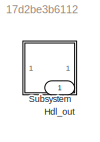
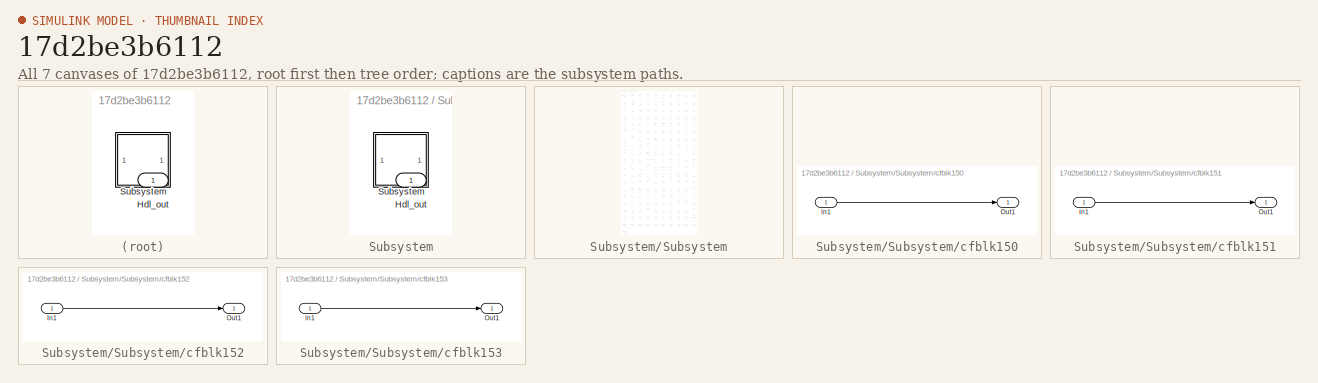
[diagram: thumbnail index - all 7 canvases of the model, root first then tree order]
MODEL slx_17d2be3b6112
KIND model
CONFIG AbsTol = auto
CONFIG EnableMultiTasking = off
CONFIG FixedStep = auto
CONFIG MaxStep = auto
CONFIG MinStep = auto
CONFIG RelTol = 1e-3
CONFIG SampleTimeConstraint = Unconstrained
CONFIG SolverName = VariableStepAuto
CONFIG StartTime = 0.0
CONFIG StopTime = 10.0
BLOCK [Outport] Hdl_out
  OutDataTypeStr = uint8
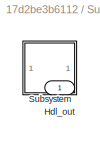
BLOCK [SubSystem] Subsystem
BLOCK [Outport] Subsystem/Hdl_out
  OutDataTypeStr = uint8
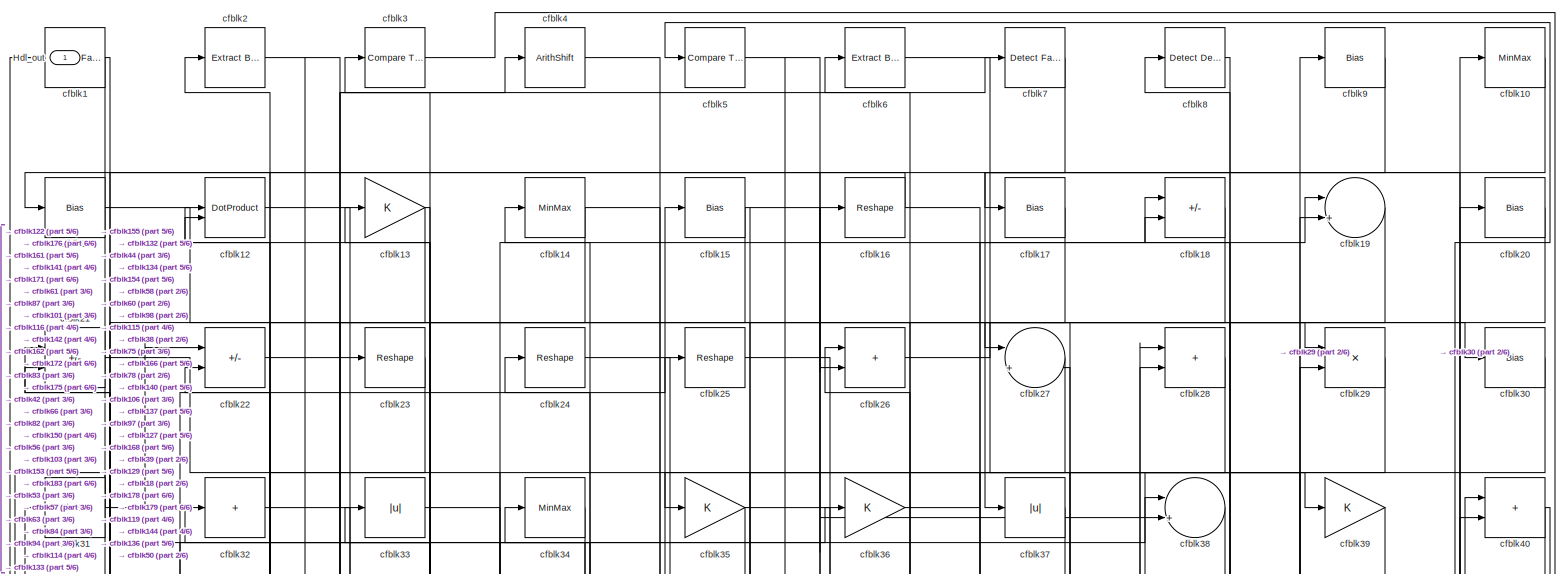
[diagram: Subsystem/Subsystem - part 1/6, full width, top band]
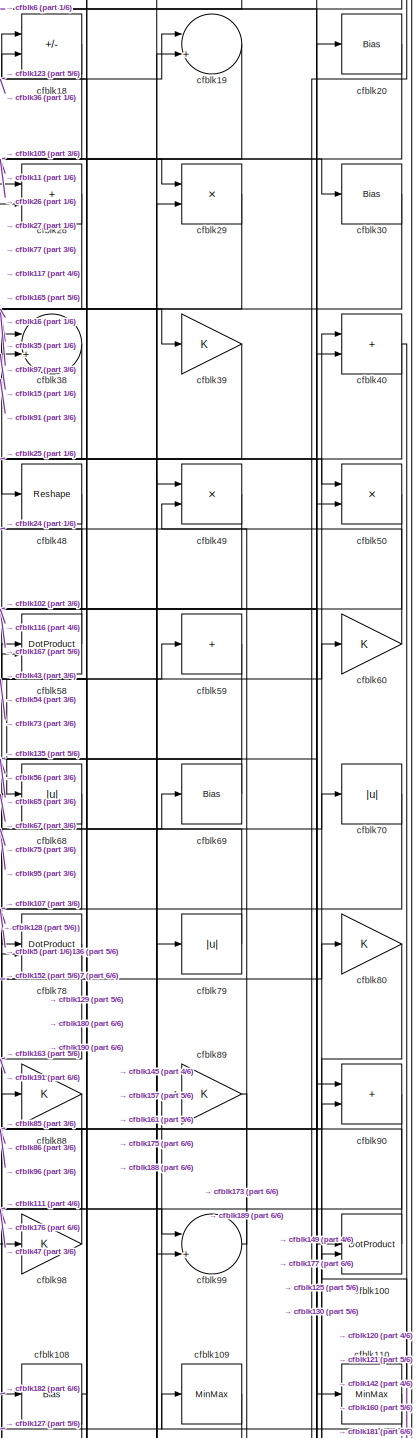
[diagram: Subsystem/Subsystem - part 2/6, top right region]
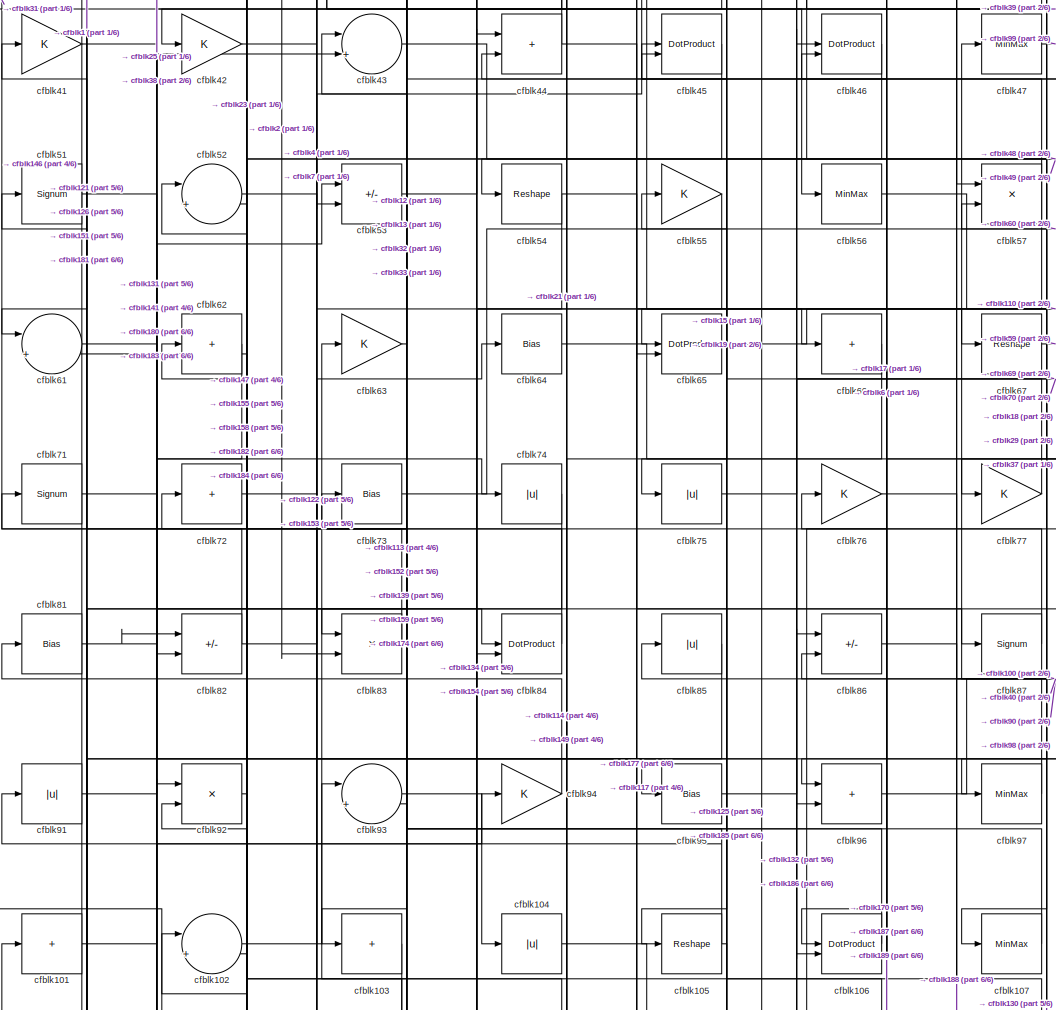
[diagram: Subsystem/Subsystem - part 3/6, central region]
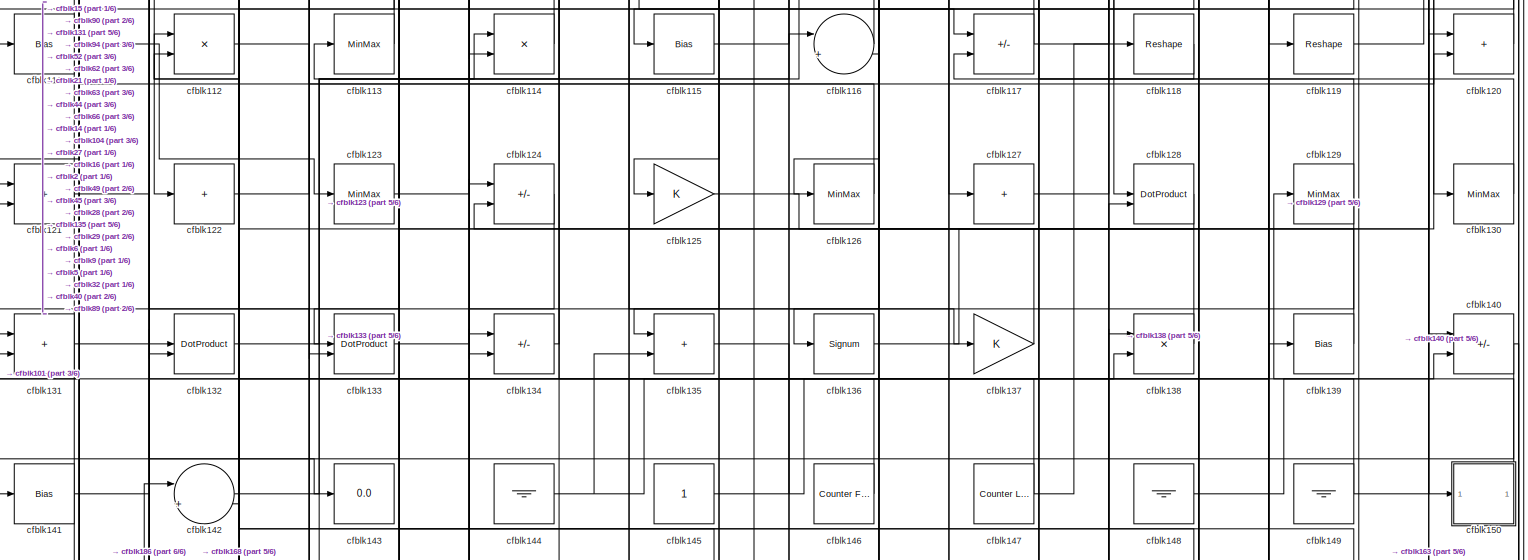
[diagram: Subsystem/Subsystem - part 4/6, full width, middle band]
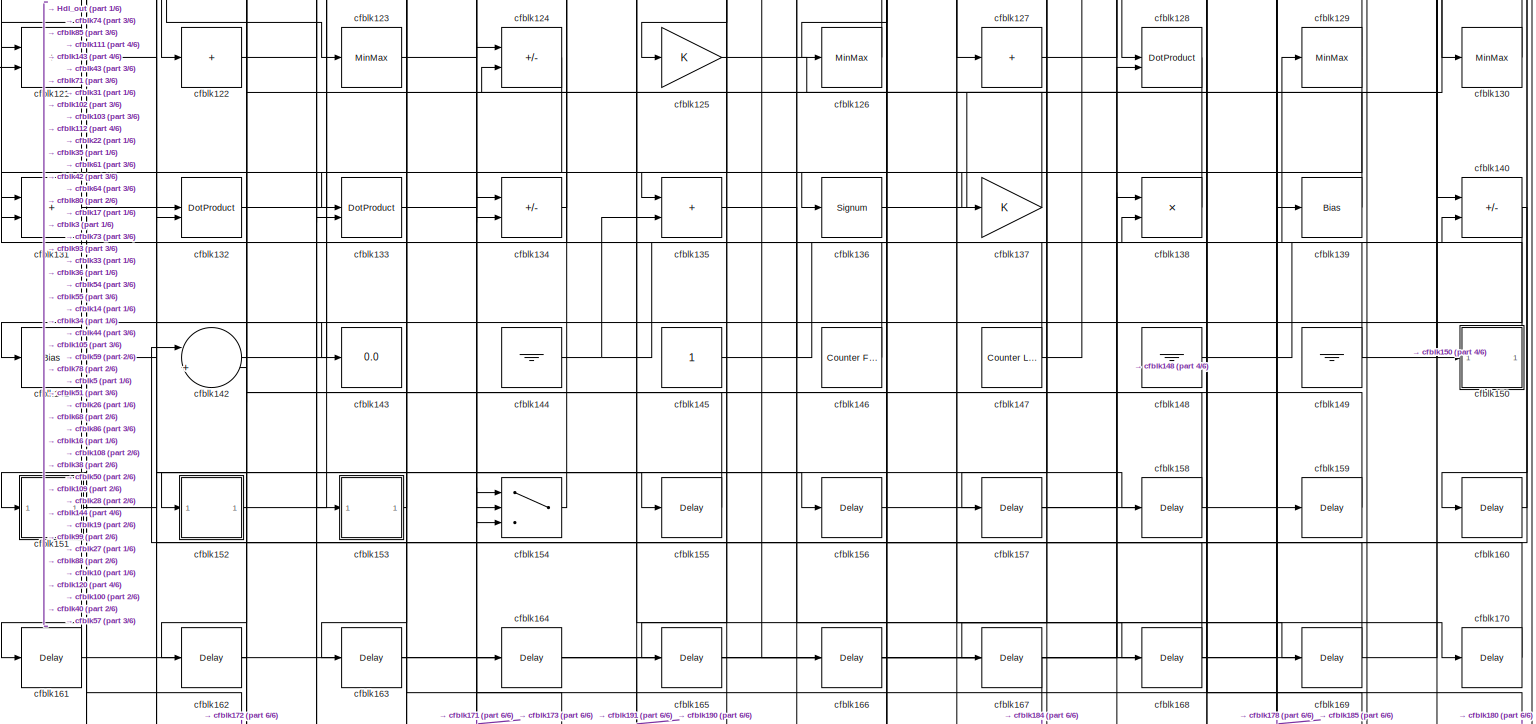
[diagram: Subsystem/Subsystem - part 5/6, full width, bottom band]
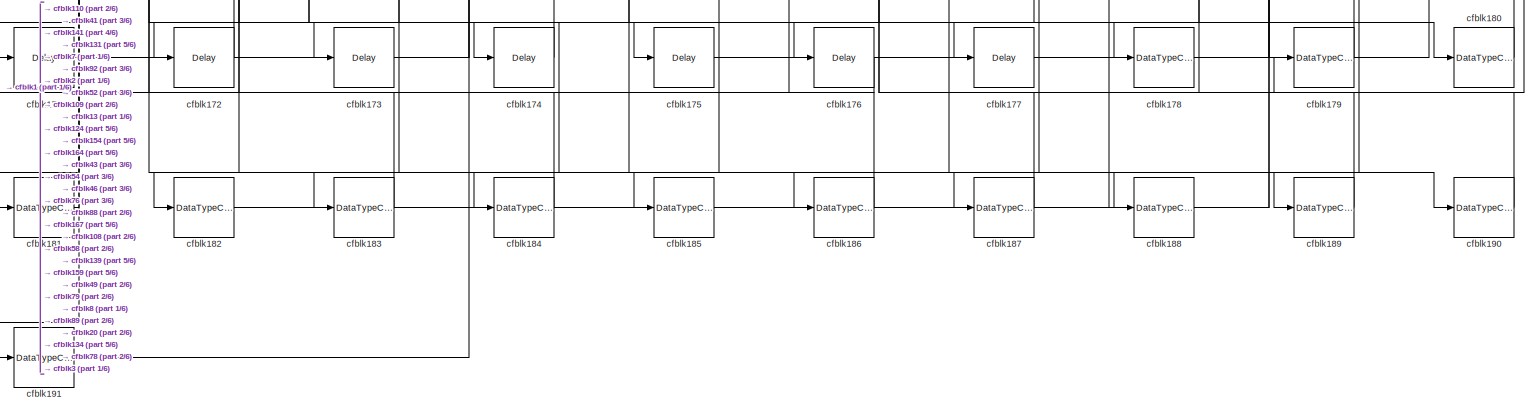
[diagram: Subsystem/Subsystem - part 6/6, full width, bottom band]
BLOCK [SubSystem] Subsystem/Subsystem
BLOCK [Outport] Subsystem/Subsystem/Hdl_out
  OutDataTypeStr = uint8
BLOCK [Reference] Subsystem/Subsystem/cfblk1  REF=hdlsllib/Logic and Bit
Operations/Detect Fall
Nonpositive
  SourceBlock = hdlsllib/Logic and Bit\nOperations/Detect Fall\nNonpositive
  SourceType = Detect Fall Nonpositive
BLOCK [MinMax] Subsystem/Subsystem/cfblk10
  OutDataTypeStr = uint8
BLOCK [DotProduct] Subsystem/Subsystem/cfblk100
  OutDataTypeStr = uint8
BLOCK [Sum] Subsystem/Subsystem/cfblk101
  IconShape = rectangular
  Inputs = +
  OutDataTypeStr = uint8
BLOCK [Sum] Subsystem/Subsystem/cfblk102
  Inputs = |++
  OutDataTypeStr = uint8
BLOCK [Sum] Subsystem/Subsystem/cfblk103
  IconShape = rectangular
  Inputs = +
  OutDataTypeStr = uint8
BLOCK [Abs] Subsystem/Subsystem/cfblk104
  OutDataTypeStr = uint8
  SaturateOnIntegerOverflow = off
BLOCK [Reshape] Subsystem/Subsystem/cfblk105
BLOCK [DotProduct] Subsystem/Subsystem/cfblk106
  OutDataTypeStr = uint8
BLOCK [MinMax] Subsystem/Subsystem/cfblk107
  OutDataTypeStr = uint8
BLOCK [Bias] Subsystem/Subsystem/cfblk108
  Bias = 0.0
  SaturateOnIntegerOverflow = off
BLOCK [MinMax] Subsystem/Subsystem/cfblk109
  OutDataTypeStr = uint8
BLOCK [Bias] Subsystem/Subsystem/cfblk11
  Bias = 0.0
  SaturateOnIntegerOverflow = off
BLOCK [MinMax] Subsystem/Subsystem/cfblk110
  OutDataTypeStr = uint8
BLOCK [Bias] Subsystem/Subsystem/cfblk111
  Bias = 0.0
  SaturateOnIntegerOverflow = off
BLOCK [Product] Subsystem/Subsystem/cfblk112
  Inputs = */
  OutDataTypeStr = uint8
  RndMeth = Zero
  SaturateOnIntegerOverflow = on
BLOCK [MinMax] Subsystem/Subsystem/cfblk113
  OutDataTypeStr = uint8
BLOCK [Product] Subsystem/Subsystem/cfblk114
  Inputs = */
  OutDataTypeStr = uint8
  RndMeth = Zero
  SaturateOnIntegerOverflow = on
BLOCK [Bias] Subsystem/Subsystem/cfblk115
  Bias = 0.0
  SaturateOnIntegerOverflow = off
BLOCK [Sum] Subsystem/Subsystem/cfblk116
  Inputs = |++
  OutDataTypeStr = uint8
BLOCK [Sum] Subsystem/Subsystem/cfblk117
  IconShape = rectangular
  Inputs = +-
  OutDataTypeStr = uint8
BLOCK [Reshape] Subsystem/Subsystem/cfblk118
BLOCK [Reshape] Subsystem/Subsystem/cfblk119
BLOCK [DotProduct] Subsystem/Subsystem/cfblk12
  OutDataTypeStr = uint8
BLOCK [Sum] Subsystem/Subsystem/cfblk120
  IconShape = rectangular
  OutDataTypeStr = uint8
BLOCK [Sum] Subsystem/Subsystem/cfblk121
  IconShape = rectangular
  OutDataTypeStr = uint8
BLOCK [Sum] Subsystem/Subsystem/cfblk122
  IconShape = rectangular
  Inputs = +
  OutDataTypeStr = uint8
BLOCK [MinMax] Subsystem/Subsystem/cfblk123
  OutDataTypeStr = uint8
BLOCK [Sum] Subsystem/Subsystem/cfblk124
  IconShape = rectangular
  Inputs = +-
  OutDataTypeStr = uint8
BLOCK [Gain] Subsystem/Subsystem/cfblk125
  OutDataTypeStr = uint8
BLOCK [MinMax] Subsystem/Subsystem/cfblk126
  OutDataTypeStr = uint8
BLOCK [Sum] Subsystem/Subsystem/cfblk127
  IconShape = rectangular
  Inputs = +
  OutDataTypeStr = uint8
BLOCK [DotProduct] Subsystem/Subsystem/cfblk128
  OutDataTypeStr = uint8
BLOCK [MinMax] Subsystem/Subsystem/cfblk129
  OutDataTypeStr = uint8
BLOCK [Gain] Subsystem/Subsystem/cfblk13
  OutDataTypeStr = uint8
BLOCK [MinMax] Subsystem/Subsystem/cfblk130
  OutDataTypeStr = uint8
BLOCK [Sum] Subsystem/Subsystem/cfblk131
  IconShape = rectangular
  OutDataTypeStr = uint8
BLOCK [DotProduct] Subsystem/Subsystem/cfblk132
  OutDataTypeStr = uint8
BLOCK [DotProduct] Subsystem/Subsystem/cfblk133
  OutDataTypeStr = uint8
BLOCK [Sum] Subsystem/Subsystem/cfblk134
  IconShape = rectangular
  Inputs = +-
  OutDataTypeStr = uint8
BLOCK [Sum] Subsystem/Subsystem/cfblk135
  IconShape = rectangular
  OutDataTypeStr = uint8
BLOCK [Signum] Subsystem/Subsystem/cfblk136
BLOCK [Gain] Subsystem/Subsystem/cfblk137
  OutDataTypeStr = uint8
BLOCK [Product] Subsystem/Subsystem/cfblk138
  Inputs = */
  OutDataTypeStr = uint8
  RndMeth = Zero
  SaturateOnIntegerOverflow = on
BLOCK [Bias] Subsystem/Subsystem/cfblk139
  Bias = 0.0
  SaturateOnIntegerOverflow = off
BLOCK [MinMax] Subsystem/Subsystem/cfblk14
  OutDataTypeStr = uint8
BLOCK [Sum] Subsystem/Subsystem/cfblk140
  IconShape = rectangular
  Inputs = +-
  OutDataTypeStr = uint8
BLOCK [Bias] Subsystem/Subsystem/cfblk141
  Bias = 0.0
  SaturateOnIntegerOverflow = off
BLOCK [Sum] Subsystem/Subsystem/cfblk142
  Inputs = |++
  OutDataTypeStr = uint8
BLOCK [Display] Subsystem/Subsystem/cfblk143
  Decimation = 1
BLOCK [Ground] Subsystem/Subsystem/cfblk144
BLOCK [Constant] Subsystem/Subsystem/cfblk145
  OutDataTypeStr = uint8
  SampleTime = -1
BLOCK [Reference] Subsystem/Subsystem/cfblk146  REF=hdlsllib/Sources/Counter
Free-Running
  SourceBlock = hdlsllib/Sources/Counter\nFree-Running
  SourceType = Counter Free-Running
BLOCK [Reference] Subsystem/Subsystem/cfblk147  REF=hdlsllib/Sources/Counter
Limited
  SourceBlock = hdlsllib/Sources/Counter\nLimited
  SourceType = Counter Limited
BLOCK [Ground] Subsystem/Subsystem/cfblk148
BLOCK [Ground] Subsystem/Subsystem/cfblk149
BLOCK [Bias] Subsystem/Subsystem/cfblk15
  Bias = 0.0
  SaturateOnIntegerOverflow = off
BLOCK [SubSystem] Subsystem/Subsystem/cfblk150
  LibrarySourceBlock = hdlsllib/Ports &\nSubsystems/Subsystem
BLOCK [Inport] Subsystem/Subsystem/cfblk150/In1
BLOCK [Outport] Subsystem/Subsystem/cfblk150/Out1
BLOCK [SubSystem] Subsystem/Subsystem/cfblk151
  LibrarySourceBlock = hdlsllib/Ports &\nSubsystems/Subsystem
BLOCK [Inport] Subsystem/Subsystem/cfblk151/In1
BLOCK [Outport] Subsystem/Subsystem/cfblk151/Out1
BLOCK [SubSystem] Subsystem/Subsystem/cfblk152
  LibrarySourceBlock = hdlsllib/Ports &\nSubsystems/Subsystem
BLOCK [Inport] Subsystem/Subsystem/cfblk152/In1
BLOCK [Outport] Subsystem/Subsystem/cfblk152/Out1
BLOCK [SubSystem] Subsystem/Subsystem/cfblk153
  LibrarySourceBlock = hdlsllib/Ports &\nSubsystems/Subsystem
BLOCK [Inport] Subsystem/Subsystem/cfblk153/In1
BLOCK [Outport] Subsystem/Subsystem/cfblk153/Out1
BLOCK [Switch] Subsystem/Subsystem/cfblk154
  InputSameDT = off
  OutDataTypeStr = uint8
  SaturateOnIntegerOverflow = off
BLOCK [Delay] Subsystem/Subsystem/cfblk155
  InputPortMap = u0
  SampleTime = 1
BLOCK [Delay] Subsystem/Subsystem/cfblk156
  InputPortMap = u0
  SampleTime = 1
BLOCK [Delay] Subsystem/Subsystem/cfblk157
  InputPortMap = u0
  SampleTime = 1
BLOCK [Delay] Subsystem/Subsystem/cfblk158
  InputPortMap = u0
  SampleTime = 1
BLOCK [Delay] Subsystem/Subsystem/cfblk159
  InputPortMap = u0
  SampleTime = 1
BLOCK [Reshape] Subsystem/Subsystem/cfblk16
BLOCK [Delay] Subsystem/Subsystem/cfblk160
  InputPortMap = u0
  SampleTime = 1
BLOCK [Delay] Subsystem/Subsystem/cfblk161
  InputPortMap = u0
  SampleTime = 1
BLOCK [Delay] Subsystem/Subsystem/cfblk162
  InputPortMap = u0
  SampleTime = 1
BLOCK [Delay] Subsystem/Subsystem/cfblk163
  InputPortMap = u0
  SampleTime = 1
BLOCK [Delay] Subsystem/Subsystem/cfblk164
  InputPortMap = u0
  SampleTime = 1
BLOCK [Delay] Subsystem/Subsystem/cfblk165
  InputPortMap = u0
  SampleTime = 1
BLOCK [Delay] Subsystem/Subsystem/cfblk166
  InputPortMap = u0
  SampleTime = 1
BLOCK [Delay] Subsystem/Subsystem/cfblk167
  InputPortMap = u0
  SampleTime = 1
BLOCK [Delay] Subsystem/Subsystem/cfblk168
  InputPortMap = u0
  SampleTime = 1
BLOCK [Delay] Subsystem/Subsystem/cfblk169
  InputPortMap = u0
  SampleTime = 1
BLOCK [Bias] Subsystem/Subsystem/cfblk17
  Bias = 0.0
  SaturateOnIntegerOverflow = off
BLOCK [Delay] Subsystem/Subsystem/cfblk170
  InputPortMap = u0
  SampleTime = 1
BLOCK [Delay] Subsystem/Subsystem/cfblk171
  InputPortMap = u0
  SampleTime = 1
BLOCK [Delay] Subsystem/Subsystem/cfblk172
  InputPortMap = u0
  SampleTime = 1
BLOCK [Delay] Subsystem/Subsystem/cfblk173
  InputPortMap = u0
  SampleTime = 1
BLOCK [Delay] Subsystem/Subsystem/cfblk174
  InputPortMap = u0
  SampleTime = 1
BLOCK [Delay] Subsystem/Subsystem/cfblk175
  InputPortMap = u0
  SampleTime = 1
BLOCK [Delay] Subsystem/Subsystem/cfblk176
  InputPortMap = u0
  SampleTime = 1
BLOCK [Delay] Subsystem/Subsystem/cfblk177
  InputPortMap = u0
  SampleTime = 1
BLOCK [DataTypeConversion] Subsystem/Subsystem/cfblk178
  OutDataTypeStr = uint8
  RndMeth = Floor
  SaturateOnIntegerOverflow = off
BLOCK [DataTypeConversion] Subsystem/Subsystem/cfblk179
  OutDataTypeStr = uint8
  RndMeth = Floor
  SaturateOnIntegerOverflow = off
BLOCK [Sum] Subsystem/Subsystem/cfblk18
  IconShape = rectangular
  Inputs = +-
  OutDataTypeStr = uint8
BLOCK [DataTypeConversion] Subsystem/Subsystem/cfblk180
  OutDataTypeStr = uint8
  RndMeth = Floor
  SaturateOnIntegerOverflow = off
BLOCK [DataTypeConversion] Subsystem/Subsystem/cfblk181
  OutDataTypeStr = uint8
  RndMeth = Floor
  SaturateOnIntegerOverflow = off
BLOCK [DataTypeConversion] Subsystem/Subsystem/cfblk182
  OutDataTypeStr = uint8
  RndMeth = Floor
  SaturateOnIntegerOverflow = off
BLOCK [DataTypeConversion] Subsystem/Subsystem/cfblk183
  OutDataTypeStr = uint8
  RndMeth = Floor
  SaturateOnIntegerOverflow = off
BLOCK [DataTypeConversion] Subsystem/Subsystem/cfblk184
  OutDataTypeStr = uint8
  RndMeth = Floor
  SaturateOnIntegerOverflow = off
BLOCK [DataTypeConversion] Subsystem/Subsystem/cfblk185
  OutDataTypeStr = uint8
  RndMeth = Floor
  SaturateOnIntegerOverflow = off
BLOCK [DataTypeConversion] Subsystem/Subsystem/cfblk186
  OutDataTypeStr = uint8
  RndMeth = Floor
  SaturateOnIntegerOverflow = off
BLOCK [DataTypeConversion] Subsystem/Subsystem/cfblk187
  OutDataTypeStr = uint8
  RndMeth = Floor
  SaturateOnIntegerOverflow = off
BLOCK [DataTypeConversion] Subsystem/Subsystem/cfblk188
  OutDataTypeStr = uint8
  RndMeth = Floor
  SaturateOnIntegerOverflow = off
BLOCK [DataTypeConversion] Subsystem/Subsystem/cfblk189
  OutDataTypeStr = uint8
  RndMeth = Floor
  SaturateOnIntegerOverflow = off
BLOCK [Sum] Subsystem/Subsystem/cfblk19
  Inputs = |++
  OutDataTypeStr = uint8
BLOCK [DataTypeConversion] Subsystem/Subsystem/cfblk190
  OutDataTypeStr = uint8
  RndMeth = Floor
  SaturateOnIntegerOverflow = off
BLOCK [DataTypeConversion] Subsystem/Subsystem/cfblk191
  OutDataTypeStr = uint8
  RndMeth = Floor
  SaturateOnIntegerOverflow = off
BLOCK [Reference] Subsystem/Subsystem/cfblk2  REF=simulink/Logic and Bit
Operations/Extract Bits
  LibrarySourceBlock = hdlsllib/Logic and Bit\nOperations/Extract Bits
  SourceBlock = simulink/Logic and Bit\nOperations/Extract Bits
  SourceType = Extract Bits
BLOCK [Bias] Subsystem/Subsystem/cfblk20
  Bias = 0.0
  SaturateOnIntegerOverflow = off
BLOCK [Sum] Subsystem/Subsystem/cfblk21
  IconShape = rectangular
  Inputs = +-
  OutDataTypeStr = uint8
BLOCK [Sum] Subsystem/Subsystem/cfblk22
  IconShape = rectangular
  Inputs = +-
  OutDataTypeStr = uint8
BLOCK [Reshape] Subsystem/Subsystem/cfblk23
BLOCK [Reshape] Subsystem/Subsystem/cfblk24
BLOCK [Reshape] Subsystem/Subsystem/cfblk25
BLOCK [Sum] Subsystem/Subsystem/cfblk26
  IconShape = rectangular
  OutDataTypeStr = uint8
BLOCK [Sum] Subsystem/Subsystem/cfblk27
  Inputs = |++
  OutDataTypeStr = uint8
BLOCK [Sum] Subsystem/Subsystem/cfblk28
  IconShape = rectangular
  OutDataTypeStr = uint8
BLOCK [Product] Subsystem/Subsystem/cfblk29
  Inputs = */
  OutDataTypeStr = uint8
  RndMeth = Zero
  SaturateOnIntegerOverflow = on
BLOCK [Reference] Subsystem/Subsystem/cfblk3  REF=hdlsllib/Logic and Bit
Operations/Compare
To Zero
  SourceBlock = hdlsllib/Logic and Bit\nOperations/Compare\nTo Zero
  SourceType = Compare To Zero
BLOCK [Bias] Subsystem/Subsystem/cfblk30
  Bias = 0.0
  SaturateOnIntegerOverflow = off
BLOCK [MinMax] Subsystem/Subsystem/cfblk31
  OutDataTypeStr = uint8
BLOCK [Sum] Subsystem/Subsystem/cfblk32
  IconShape = rectangular
  Inputs = +
  OutDataTypeStr = uint8
BLOCK [Abs] Subsystem/Subsystem/cfblk33
  OutDataTypeStr = uint8
  SaturateOnIntegerOverflow = off
BLOCK [MinMax] Subsystem/Subsystem/cfblk34
  OutDataTypeStr = uint8
BLOCK [Gain] Subsystem/Subsystem/cfblk35
  OutDataTypeStr = uint8
BLOCK [Gain] Subsystem/Subsystem/cfblk36
  OutDataTypeStr = uint8
BLOCK [Abs] Subsystem/Subsystem/cfblk37
  OutDataTypeStr = uint8
  SaturateOnIntegerOverflow = off
BLOCK [Sum] Subsystem/Subsystem/cfblk38
  Inputs = |++
  OutDataTypeStr = uint8
BLOCK [Gain] Subsystem/Subsystem/cfblk39
  OutDataTypeStr = uint8
BLOCK [ArithShift] Subsystem/Subsystem/cfblk4
  BitShiftNumber = 8
  InputPortMap = u0
BLOCK [Sum] Subsystem/Subsystem/cfblk40
  IconShape = rectangular
  OutDataTypeStr = uint8
BLOCK [Gain] Subsystem/Subsystem/cfblk41
  OutDataTypeStr = uint8
BLOCK [Gain] Subsystem/Subsystem/cfblk42
  OutDataTypeStr = uint8
BLOCK [Sum] Subsystem/Subsystem/cfblk43
  Inputs = |++
  OutDataTypeStr = uint8
BLOCK [Sum] Subsystem/Subsystem/cfblk44
  IconShape = rectangular
  OutDataTypeStr = uint8
BLOCK [DotProduct] Subsystem/Subsystem/cfblk45
  OutDataTypeStr = uint8
BLOCK [DotProduct] Subsystem/Subsystem/cfblk46
  OutDataTypeStr = uint8
BLOCK [MinMax] Subsystem/Subsystem/cfblk47
  OutDataTypeStr = uint8
BLOCK [Reshape] Subsystem/Subsystem/cfblk48
BLOCK [Product] Subsystem/Subsystem/cfblk49
  Inputs = */
  OutDataTypeStr = uint8
  RndMeth = Zero
  SaturateOnIntegerOverflow = on
BLOCK [Reference] Subsystem/Subsystem/cfblk5  REF=hdlsllib/Logic and Bit
Operations/Compare
To Zero
  SourceBlock = hdlsllib/Logic and Bit\nOperations/Compare\nTo Zero
  SourceType = Compare To Zero
BLOCK [Product] Subsystem/Subsystem/cfblk50
  Inputs = */
  OutDataTypeStr = uint8
  RndMeth = Zero
  SaturateOnIntegerOverflow = on
BLOCK [Signum] Subsystem/Subsystem/cfblk51
BLOCK [Sum] Subsystem/Subsystem/cfblk52
  Inputs = |++
  OutDataTypeStr = uint8
BLOCK [Sum] Subsystem/Subsystem/cfblk53
  IconShape = rectangular
  Inputs = +-
  OutDataTypeStr = uint8
BLOCK [Reshape] Subsystem/Subsystem/cfblk54
BLOCK [Gain] Subsystem/Subsystem/cfblk55
  OutDataTypeStr = uint8
BLOCK [MinMax] Subsystem/Subsystem/cfblk56
  OutDataTypeStr = uint8
BLOCK [Product] Subsystem/Subsystem/cfblk57
  Inputs = */
  OutDataTypeStr = uint8
  RndMeth = Zero
  SaturateOnIntegerOverflow = on
BLOCK [DotProduct] Subsystem/Subsystem/cfblk58
  OutDataTypeStr = uint8
BLOCK [Sum] Subsystem/Subsystem/cfblk59
  IconShape = rectangular
  Inputs = +
  OutDataTypeStr = uint8
BLOCK [Reference] Subsystem/Subsystem/cfblk6  REF=simulink/Logic and Bit
Operations/Extract Bits
  LibrarySourceBlock = hdlsllib/Logic and Bit\nOperations/Extract Bits
  SourceBlock = simulink/Logic and Bit\nOperations/Extract Bits
  SourceType = Extract Bits
BLOCK [Gain] Subsystem/Subsystem/cfblk60
  OutDataTypeStr = uint8
BLOCK [Sum] Subsystem/Subsystem/cfblk61
  Inputs = |++
  OutDataTypeStr = uint8
BLOCK [Sum] Subsystem/Subsystem/cfblk62
  IconShape = rectangular
  Inputs = +
  OutDataTypeStr = uint8
BLOCK [Gain] Subsystem/Subsystem/cfblk63
  OutDataTypeStr = uint8
BLOCK [Bias] Subsystem/Subsystem/cfblk64
  Bias = 0.0
  SaturateOnIntegerOverflow = off
BLOCK [DotProduct] Subsystem/Subsystem/cfblk65
  OutDataTypeStr = uint8
BLOCK [Sum] Subsystem/Subsystem/cfblk66
  IconShape = rectangular
  Inputs = +
  OutDataTypeStr = uint8
BLOCK [Reshape] Subsystem/Subsystem/cfblk67
BLOCK [Abs] Subsystem/Subsystem/cfblk68
  OutDataTypeStr = uint8
  SaturateOnIntegerOverflow = off
BLOCK [Bias] Subsystem/Subsystem/cfblk69
  Bias = 0.0
  SaturateOnIntegerOverflow = off
BLOCK [Reference] Subsystem/Subsystem/cfblk7  REF=hdlsllib/Logic and Bit
Operations/Detect Fall
Negative
  SourceBlock = hdlsllib/Logic and Bit\nOperations/Detect Fall\nNegative
  SourceType = Detect Fall Negative
BLOCK [Abs] Subsystem/Subsystem/cfblk70
  OutDataTypeStr = uint8
  SaturateOnIntegerOverflow = off
BLOCK [Signum] Subsystem/Subsystem/cfblk71
BLOCK [Sum] Subsystem/Subsystem/cfblk72
  IconShape = rectangular
  Inputs = +
  OutDataTypeStr = uint8
BLOCK [Bias] Subsystem/Subsystem/cfblk73
  Bias = 0.0
  SaturateOnIntegerOverflow = off
BLOCK [Abs] Subsystem/Subsystem/cfblk74
  OutDataTypeStr = uint8
  SaturateOnIntegerOverflow = off
BLOCK [Abs] Subsystem/Subsystem/cfblk75
  OutDataTypeStr = uint8
  SaturateOnIntegerOverflow = off
BLOCK [Gain] Subsystem/Subsystem/cfblk76
  OutDataTypeStr = uint8
BLOCK [Gain] Subsystem/Subsystem/cfblk77
  OutDataTypeStr = uint8
BLOCK [DotProduct] Subsystem/Subsystem/cfblk78
  OutDataTypeStr = uint8
BLOCK [Abs] Subsystem/Subsystem/cfblk79
  OutDataTypeStr = uint8
  SaturateOnIntegerOverflow = off
BLOCK [Reference] Subsystem/Subsystem/cfblk8  REF=simulink/Logic and Bit
Operations/Detect
Decrease
  LibrarySourceBlock = hdlsllib/Logic and Bit\nOperations/Detect\nDecrease
  SourceBlock = simulink/Logic and Bit\nOperations/Detect\nDecrease
  SourceType = Detect Decrease
BLOCK [Gain] Subsystem/Subsystem/cfblk80
  OutDataTypeStr = uint8
BLOCK [Bias] Subsystem/Subsystem/cfblk81
  Bias = 0.0
  SaturateOnIntegerOverflow = off
BLOCK [Sum] Subsystem/Subsystem/cfblk82
  IconShape = rectangular
  Inputs = +-
  OutDataTypeStr = uint8
BLOCK [Product] Subsystem/Subsystem/cfblk83
  Inputs = */
  OutDataTypeStr = uint8
  RndMeth = Zero
  SaturateOnIntegerOverflow = on
BLOCK [DotProduct] Subsystem/Subsystem/cfblk84
  OutDataTypeStr = uint8
BLOCK [Abs] Subsystem/Subsystem/cfblk85
  OutDataTypeStr = uint8
  SaturateOnIntegerOverflow = off
BLOCK [Sum] Subsystem/Subsystem/cfblk86
  IconShape = rectangular
  Inputs = +-
  OutDataTypeStr = uint8
BLOCK [Signum] Subsystem/Subsystem/cfblk87
BLOCK [Gain] Subsystem/Subsystem/cfblk88
  OutDataTypeStr = uint8
BLOCK [Gain] Subsystem/Subsystem/cfblk89
  OutDataTypeStr = uint8
BLOCK [Bias] Subsystem/Subsystem/cfblk9
  Bias = 0.0
  SaturateOnIntegerOverflow = off
BLOCK [Sum] Subsystem/Subsystem/cfblk90
  IconShape = rectangular
  OutDataTypeStr = uint8
BLOCK [Abs] Subsystem/Subsystem/cfblk91
  OutDataTypeStr = uint8
  SaturateOnIntegerOverflow = off
BLOCK [Product] Subsystem/Subsystem/cfblk92
  Inputs = */
  OutDataTypeStr = uint8
  RndMeth = Zero
  SaturateOnIntegerOverflow = on
BLOCK [Sum] Subsystem/Subsystem/cfblk93
  Inputs = |++
  OutDataTypeStr = uint8
BLOCK [Gain] Subsystem/Subsystem/cfblk94
  OutDataTypeStr = uint8
BLOCK [Bias] Subsystem/Subsystem/cfblk95
  Bias = 0.0
  SaturateOnIntegerOverflow = off
BLOCK [Sum] Subsystem/Subsystem/cfblk96
  IconShape = rectangular
  OutDataTypeStr = uint8
BLOCK [MinMax] Subsystem/Subsystem/cfblk97
  OutDataTypeStr = uint8
BLOCK [Gain] Subsystem/Subsystem/cfblk98
  OutDataTypeStr = uint8
BLOCK [Sum] Subsystem/Subsystem/cfblk99
  Inputs = |++
  OutDataTypeStr = uint8
LINE Subsystem/Subsystem/cfblk100:1 -> Subsystem/Subsystem/cfblk85:1
LINE Subsystem/Subsystem/cfblk101:1 -> Subsystem/Subsystem/cfblk25:1
NET Subsystem/Subsystem/cfblk102:1 -> Subsystem/Subsystem/cfblk45:2, Subsystem/Subsystem/cfblk93:1
LINE Subsystem/Subsystem/cfblk103:1 -> Subsystem/Subsystem/cfblk152:1
LINE Subsystem/Subsystem/cfblk104:1 -> Subsystem/Subsystem/cfblk117:1
NET Subsystem/Subsystem/cfblk105:1 -> Subsystem/Subsystem/cfblk125:1, Subsystem/Subsystem/cfblk81:1, Subsystem/Subsystem/cfblk91:1
LINE Subsystem/Subsystem/cfblk106:1 -> Subsystem/Subsystem/cfblk71:1
LINE Subsystem/Subsystem/cfblk107:1 -> Subsystem/Subsystem/cfblk72:1
NET Subsystem/Subsystem/cfblk108:1 -> Subsystem/Subsystem/cfblk136:1, Subsystem/Subsystem/cfblk187:1, Subsystem/Subsystem/cfblk18:2
LINE Subsystem/Subsystem/cfblk109:1 -> Subsystem/Subsystem/cfblk173:1
LINE Subsystem/Subsystem/cfblk10:1 -> Subsystem/Subsystem/cfblk37:1
LINE Subsystem/Subsystem/cfblk110:1 -> Subsystem/Subsystem/cfblk181:1
NET Subsystem/Subsystem/cfblk111:1 -> Subsystem/Subsystem/cfblk123:1, Subsystem/Subsystem/cfblk133:2
LINE Subsystem/Subsystem/cfblk112:1 -> Subsystem/Subsystem/cfblk120:2
LINE Subsystem/Subsystem/cfblk113:1 -> Subsystem/Subsystem/cfblk62:1
LINE Subsystem/Subsystem/cfblk114:1 -> Subsystem/Subsystem/cfblk63:1
LINE Subsystem/Subsystem/cfblk115:1 -> Subsystem/Subsystem/cfblk16:1
LINE Subsystem/Subsystem/cfblk116:1 -> Subsystem/Subsystem/cfblk2:1
NET Subsystem/Subsystem/cfblk117:1 -> Subsystem/Subsystem/cfblk28:1, Subsystem/Subsystem/cfblk45:1
LINE Subsystem/Subsystem/cfblk118:1 -> Subsystem/Subsystem/cfblk117:2
LINE Subsystem/Subsystem/cfblk119:1 -> Subsystem/Subsystem/cfblk5:1
LINE Subsystem/Subsystem/cfblk11:1 -> Subsystem/Subsystem/cfblk29:1
LINE Subsystem/Subsystem/cfblk120:1 -> Subsystem/Subsystem/cfblk89:1
LINE Subsystem/Subsystem/cfblk121:1 -> Subsystem/Subsystem/cfblk156:1
LINE Subsystem/Subsystem/cfblk122:1 -> Subsystem/Subsystem/cfblk64:1
LINE Subsystem/Subsystem/cfblk123:1 -> Subsystem/Subsystem/cfblk19:1
LINE Subsystem/Subsystem/cfblk124:1 -> Subsystem/Subsystem/cfblk154:2
LINE Subsystem/Subsystem/cfblk125:1 -> Subsystem/Subsystem/cfblk40:1
LINE Subsystem/Subsystem/cfblk126:1 -> Subsystem/Subsystem/cfblk51:1
LINE Subsystem/Subsystem/cfblk127:1 -> Subsystem/Subsystem/cfblk109:1
LINE Subsystem/Subsystem/cfblk128:1 -> Subsystem/Subsystem/cfblk124:2
NET Subsystem/Subsystem/cfblk129:1 -> Subsystem/Subsystem/cfblk131:1, Subsystem/Subsystem/cfblk27:2, Subsystem/Subsystem/cfblk88:1
LINE Subsystem/Subsystem/cfblk12:1 -> Subsystem/Subsystem/cfblk56:1
NET Subsystem/Subsystem/cfblk130:1 -> Subsystem/Subsystem/cfblk57:2, Subsystem/Subsystem/cfblk68:1
NET Subsystem/Subsystem/cfblk131:1 -> Subsystem/Subsystem/cfblk143:1, Subsystem/Subsystem/cfblk43:2
LINE Subsystem/Subsystem/cfblk132:1 -> Subsystem/Subsystem/cfblk86:1
LINE Subsystem/Subsystem/cfblk133:1 -> Subsystem/Subsystem/cfblk36:1
LINE Subsystem/Subsystem/cfblk134:1 -> Subsystem/Subsystem/cfblk14:1
LINE Subsystem/Subsystem/cfblk135:1 -> Subsystem/Subsystem/cfblk169:1
LINE Subsystem/Subsystem/cfblk136:1 -> Subsystem/Subsystem/cfblk10:1
LINE Subsystem/Subsystem/cfblk137:1 -> Subsystem/Subsystem/cfblk26:1
LINE Subsystem/Subsystem/cfblk138:1 -> Subsystem/Subsystem/cfblk112:1
LINE Subsystem/Subsystem/cfblk139:1 -> Subsystem/Subsystem/cfblk73:1
NET Subsystem/Subsystem/cfblk13:1 -> Subsystem/Subsystem/cfblk183:1, Subsystem/Subsystem/cfblk53:2
NET Subsystem/Subsystem/cfblk140:1 -> Subsystem/Subsystem/cfblk160:1, Subsystem/Subsystem/cfblk161:1
NET Subsystem/Subsystem/cfblk141:1 -> Subsystem/Subsystem/cfblk186:1, Subsystem/Subsystem/cfblk94:1
LINE Subsystem/Subsystem/cfblk142:1 -> Subsystem/Subsystem/cfblk114:1
NET Subsystem/Subsystem/cfblk144:1 -> Subsystem/Subsystem/cfblk135:2, Subsystem/Subsystem/cfblk9:1
NET Subsystem/Subsystem/cfblk145:1 -> Subsystem/Subsystem/cfblk116:1, Subsystem/Subsystem/cfblk29:2
LINE Subsystem/Subsystem/cfblk146:1 -> Subsystem/Subsystem/cfblk101:1
NET Subsystem/Subsystem/cfblk147:1 -> Subsystem/Subsystem/cfblk118:1, Subsystem/Subsystem/cfblk52:1
LINE Subsystem/Subsystem/cfblk148:1 -> Subsystem/Subsystem/cfblk140:2
NET Subsystem/Subsystem/cfblk149:1 -> Subsystem/Subsystem/cfblk44:2, Subsystem/Subsystem/cfblk90:1
NET Subsystem/Subsystem/cfblk14:1 -> Subsystem/Subsystem/cfblk137:1, Subsystem/Subsystem/cfblk142:2
LINE Subsystem/Subsystem/cfblk150/In1:1 -> Subsystem/Subsystem/cfblk150/Out1:1
LINE Subsystem/Subsystem/cfblk150:1 -> Subsystem/Subsystem/cfblk129:1
LINE Subsystem/Subsystem/cfblk151/In1:1 -> Subsystem/Subsystem/cfblk151/Out1:1
LINE Subsystem/Subsystem/cfblk151:1 -> Subsystem/Subsystem/cfblk138:2
LINE Subsystem/Subsystem/cfblk152/In1:1 -> Subsystem/Subsystem/cfblk152/Out1:1
LINE Subsystem/Subsystem/cfblk152:1 -> Subsystem/Subsystem/cfblk80:1
LINE Subsystem/Subsystem/cfblk153/In1:1 -> Subsystem/Subsystem/cfblk153/Out1:1
LINE Subsystem/Subsystem/cfblk153:1 -> Subsystem/Subsystem/cfblk3:1
LINE Subsystem/Subsystem/cfblk154:1 -> Subsystem/Subsystem/cfblk34:1
LINE Subsystem/Subsystem/cfblk155:1 -> Subsystem/Subsystem/cfblk102:1
LINE Subsystem/Subsystem/cfblk156:1 -> Subsystem/Subsystem/cfblk128:2
LINE Subsystem/Subsystem/cfblk157:1 -> Subsystem/Subsystem/cfblk19:2
LINE Subsystem/Subsystem/cfblk158:1 -> Subsystem/Subsystem/cfblk61:2
LINE Subsystem/Subsystem/cfblk159:1 -> Subsystem/Subsystem/cfblk93:2
NET Subsystem/Subsystem/cfblk15:1 -> Subsystem/Subsystem/cfblk141:1, Subsystem/Subsystem/cfblk38:2, Subsystem/Subsystem/cfblk75:1
LINE Subsystem/Subsystem/cfblk160:1 -> Subsystem/Subsystem/cfblk100:2
NET Subsystem/Subsystem/cfblk161:1 -> Subsystem/Subsystem/Hdl_out:1, Subsystem/Subsystem/cfblk99:2
LINE Subsystem/Subsystem/cfblk162:1 -> Subsystem/Subsystem/cfblk22:2
LINE Subsystem/Subsystem/cfblk163:1 -> Subsystem/Subsystem/cfblk120:1
LINE Subsystem/Subsystem/cfblk164:1 -> Subsystem/Subsystem/cfblk190:1
LINE Subsystem/Subsystem/cfblk165:1 -> Subsystem/Subsystem/cfblk28:2
LINE Subsystem/Subsystem/cfblk166:1 -> Subsystem/Subsystem/cfblk138:1
LINE Subsystem/Subsystem/cfblk167:1 -> Subsystem/Subsystem/cfblk184:1
LINE Subsystem/Subsystem/cfblk168:1 -> Subsystem/Subsystem/cfblk112:2
LINE Subsystem/Subsystem/cfblk169:1 -> Subsystem/Subsystem/cfblk132:1
NET Subsystem/Subsystem/cfblk16:1 -> Subsystem/Subsystem/cfblk11:1, Subsystem/Subsystem/cfblk168:1, Subsystem/Subsystem/cfblk39:1
LINE Subsystem/Subsystem/cfblk170:1 -> Subsystem/Subsystem/cfblk86:2
LINE Subsystem/Subsystem/cfblk171:1 -> Subsystem/Subsystem/cfblk124:1
LINE Subsystem/Subsystem/cfblk172:1 -> Subsystem/Subsystem/cfblk131:2
LINE Subsystem/Subsystem/cfblk173:1 -> Subsystem/Subsystem/cfblk154:1
LINE Subsystem/Subsystem/cfblk174:1 -> Subsystem/Subsystem/cfblk43:1
LINE Subsystem/Subsystem/cfblk175:1 -> Subsystem/Subsystem/cfblk49:1
LINE Subsystem/Subsystem/cfblk176:1 -> Subsystem/Subsystem/cfblk1:1
LINE Subsystem/Subsystem/cfblk177:1 -> Subsystem/Subsystem/cfblk20:1
LINE Subsystem/Subsystem/cfblk178:1 -> Subsystem/Subsystem/cfblk139:1
LINE Subsystem/Subsystem/cfblk179:1 -> Subsystem/Subsystem/cfblk8:1
NET Subsystem/Subsystem/cfblk17:1 -> Subsystem/Subsystem/cfblk103:1, Subsystem/Subsystem/cfblk106:1, Subsystem/Subsystem/cfblk133:1
NET Subsystem/Subsystem/cfblk180:1 -> Subsystem/Subsystem/cfblk134:1, Subsystem/Subsystem/cfblk78:2
LINE Subsystem/Subsystem/cfblk181:1 -> Subsystem/Subsystem/cfblk41:1
LINE Subsystem/Subsystem/cfblk182:1 -> Subsystem/Subsystem/cfblk108:1
LINE Subsystem/Subsystem/cfblk183:1 -> Subsystem/Subsystem/cfblk92:1
LINE Subsystem/Subsystem/cfblk184:1 -> Subsystem/Subsystem/cfblk92:2
LINE Subsystem/Subsystem/cfblk185:1 -> Subsystem/Subsystem/cfblk159:1
LINE Subsystem/Subsystem/cfblk186:1 -> Subsystem/Subsystem/cfblk46:1
LINE Subsystem/Subsystem/cfblk187:1 -> Subsystem/Subsystem/cfblk46:2
LINE Subsystem/Subsystem/cfblk188:1 -> Subsystem/Subsystem/cfblk79:1
LINE Subsystem/Subsystem/cfblk189:1 -> Subsystem/Subsystem/cfblk76:1
NET Subsystem/Subsystem/cfblk18:1 -> Subsystem/Subsystem/cfblk27:1, Subsystem/Subsystem/cfblk77:1
LINE Subsystem/Subsystem/cfblk190:1 -> Subsystem/Subsystem/cfblk58:2
LINE Subsystem/Subsystem/cfblk191:1 -> Subsystem/Subsystem/cfblk164:1
LINE Subsystem/Subsystem/cfblk19:1 -> Subsystem/Subsystem/cfblk105:1
LINE Subsystem/Subsystem/cfblk1:1 -> Subsystem/Subsystem/cfblk61:1
LINE Subsystem/Subsystem/cfblk20:1 -> Subsystem/Subsystem/cfblk48:1
NET Subsystem/Subsystem/cfblk21:1 -> Subsystem/Subsystem/cfblk114:2, Subsystem/Subsystem/cfblk57:1
LINE Subsystem/Subsystem/cfblk22:1 -> Subsystem/Subsystem/cfblk23:1
LINE Subsystem/Subsystem/cfblk23:1 -> Subsystem/Subsystem/cfblk42:1
LINE Subsystem/Subsystem/cfblk24:1 -> Subsystem/Subsystem/cfblk98:1
LINE Subsystem/Subsystem/cfblk25:1 -> Subsystem/Subsystem/cfblk50:1
LINE Subsystem/Subsystem/cfblk26:1 -> Subsystem/Subsystem/cfblk30:1
LINE Subsystem/Subsystem/cfblk27:1 -> Subsystem/Subsystem/cfblk115:1
LINE Subsystem/Subsystem/cfblk28:1 -> Subsystem/Subsystem/cfblk128:1
LINE Subsystem/Subsystem/cfblk29:1 -> Subsystem/Subsystem/cfblk97:1
NET Subsystem/Subsystem/cfblk2:1 -> Subsystem/Subsystem/cfblk175:1, Subsystem/Subsystem/cfblk66:1, Subsystem/Subsystem/cfblk83:2
LINE Subsystem/Subsystem/cfblk30:1 -> Subsystem/Subsystem/cfblk35:1
NET Subsystem/Subsystem/cfblk31:1 -> Subsystem/Subsystem/cfblk122:1, Subsystem/Subsystem/cfblk22:1
LINE Subsystem/Subsystem/cfblk32:1 -> Subsystem/Subsystem/cfblk150:1
LINE Subsystem/Subsystem/cfblk33:1 -> Subsystem/Subsystem/cfblk155:1
LINE Subsystem/Subsystem/cfblk34:1 -> Subsystem/Subsystem/cfblk132:2
NET Subsystem/Subsystem/cfblk35:1 -> Subsystem/Subsystem/cfblk140:1, Subsystem/Subsystem/cfblk162:1
NET Subsystem/Subsystem/cfblk36:1 -> Subsystem/Subsystem/cfblk127:1, Subsystem/Subsystem/cfblk18:1
LINE Subsystem/Subsystem/cfblk37:1 -> Subsystem/Subsystem/cfblk83:1
LINE Subsystem/Subsystem/cfblk38:1 -> Subsystem/Subsystem/cfblk157:1
LINE Subsystem/Subsystem/cfblk39:1 -> Subsystem/Subsystem/cfblk96:1
LINE Subsystem/Subsystem/cfblk3:1 -> Subsystem/Subsystem/cfblk179:1
NET Subsystem/Subsystem/cfblk40:1 -> Subsystem/Subsystem/cfblk121:2, Subsystem/Subsystem/cfblk142:1
LINE Subsystem/Subsystem/cfblk41:1 -> Subsystem/Subsystem/cfblk180:1
NET Subsystem/Subsystem/cfblk42:1 -> Subsystem/Subsystem/cfblk153:1, Subsystem/Subsystem/cfblk4:1
LINE Subsystem/Subsystem/cfblk43:1 -> Subsystem/Subsystem/cfblk100:1
NET Subsystem/Subsystem/cfblk44:1 -> Subsystem/Subsystem/cfblk170:1, Subsystem/Subsystem/cfblk21:2
LINE Subsystem/Subsystem/cfblk45:1 -> Subsystem/Subsystem/cfblk52:2
LINE Subsystem/Subsystem/cfblk46:1 -> Subsystem/Subsystem/cfblk185:1
LINE Subsystem/Subsystem/cfblk47:1 -> Subsystem/Subsystem/cfblk99:1
LINE Subsystem/Subsystem/cfblk48:1 -> Subsystem/Subsystem/cfblk54:1
NET Subsystem/Subsystem/cfblk49:1 -> Subsystem/Subsystem/cfblk102:2, Subsystem/Subsystem/cfblk116:2
LINE Subsystem/Subsystem/cfblk4:1 -> Subsystem/Subsystem/cfblk87:1
LINE Subsystem/Subsystem/cfblk50:1 -> Subsystem/Subsystem/cfblk167:1
NET Subsystem/Subsystem/cfblk51:1 -> Subsystem/Subsystem/cfblk74:1, Subsystem/Subsystem/cfblk95:1
LINE Subsystem/Subsystem/cfblk52:1 -> Subsystem/Subsystem/cfblk174:1
LINE Subsystem/Subsystem/cfblk53:1 -> Subsystem/Subsystem/cfblk44:1
NET Subsystem/Subsystem/cfblk54:1 -> Subsystem/Subsystem/cfblk154:3, Subsystem/Subsystem/cfblk177:1, Subsystem/Subsystem/cfblk84:2
LINE Subsystem/Subsystem/cfblk55:1 -> Subsystem/Subsystem/cfblk134:2
LINE Subsystem/Subsystem/cfblk56:1 -> Subsystem/Subsystem/cfblk110:1
NET Subsystem/Subsystem/cfblk57:1 -> Subsystem/Subsystem/cfblk12:2, Subsystem/Subsystem/cfblk65:2
LINE Subsystem/Subsystem/cfblk58:1 -> Subsystem/Subsystem/cfblk24:1
LINE Subsystem/Subsystem/cfblk59:1 -> Subsystem/Subsystem/cfblk135:1
NET Subsystem/Subsystem/cfblk5:1 -> Subsystem/Subsystem/cfblk166:1, Subsystem/Subsystem/cfblk78:1
LINE Subsystem/Subsystem/cfblk60:1 -> Subsystem/Subsystem/cfblk15:1
LINE Subsystem/Subsystem/cfblk61:1 -> Subsystem/Subsystem/cfblk84:1
LINE Subsystem/Subsystem/cfblk62:1 -> Subsystem/Subsystem/cfblk82:2
LINE Subsystem/Subsystem/cfblk63:1 -> Subsystem/Subsystem/cfblk33:1
LINE Subsystem/Subsystem/cfblk64:1 -> Subsystem/Subsystem/cfblk106:2
LINE Subsystem/Subsystem/cfblk65:1 -> Subsystem/Subsystem/cfblk67:1
LINE Subsystem/Subsystem/cfblk66:1 -> Subsystem/Subsystem/cfblk113:1
LINE Subsystem/Subsystem/cfblk67:1 -> Subsystem/Subsystem/cfblk59:1
LINE Subsystem/Subsystem/cfblk68:1 -> Subsystem/Subsystem/cfblk126:1
LINE Subsystem/Subsystem/cfblk69:1 -> Subsystem/Subsystem/cfblk65:1
NET Subsystem/Subsystem/cfblk6:1 -> Subsystem/Subsystem/cfblk119:1, Subsystem/Subsystem/cfblk50:2
LINE Subsystem/Subsystem/cfblk70:1 -> Subsystem/Subsystem/cfblk107:1
LINE Subsystem/Subsystem/cfblk71:1 -> Subsystem/Subsystem/cfblk158:1
LINE Subsystem/Subsystem/cfblk72:1 -> Subsystem/Subsystem/cfblk96:2
LINE Subsystem/Subsystem/cfblk73:1 -> Subsystem/Subsystem/cfblk60:1
LINE Subsystem/Subsystem/cfblk74:1 -> Subsystem/Subsystem/cfblk121:1
LINE Subsystem/Subsystem/cfblk75:1 -> Subsystem/Subsystem/cfblk70:1
LINE Subsystem/Subsystem/cfblk76:1 -> Subsystem/Subsystem/cfblk188:1
LINE Subsystem/Subsystem/cfblk77:1 -> Subsystem/Subsystem/cfblk55:1
NET Subsystem/Subsystem/cfblk78:1 -> Subsystem/Subsystem/cfblk163:1, Subsystem/Subsystem/cfblk165:1, Subsystem/Subsystem/cfblk191:1
LINE Subsystem/Subsystem/cfblk79:1 -> Subsystem/Subsystem/cfblk58:1
NET Subsystem/Subsystem/cfblk7:1 -> Subsystem/Subsystem/cfblk171:1, Subsystem/Subsystem/cfblk172:1, Subsystem/Subsystem/cfblk26:2
LINE Subsystem/Subsystem/cfblk80:1 -> Subsystem/Subsystem/cfblk130:1
NET Subsystem/Subsystem/cfblk81:1 -> Subsystem/Subsystem/cfblk53:1, Subsystem/Subsystem/cfblk82:1
NET Subsystem/Subsystem/cfblk82:1 -> Subsystem/Subsystem/cfblk31:1, Subsystem/Subsystem/cfblk7:1
LINE Subsystem/Subsystem/cfblk83:1 -> Subsystem/Subsystem/cfblk12:1
LINE Subsystem/Subsystem/cfblk84:1 -> Subsystem/Subsystem/cfblk32:1
LINE Subsystem/Subsystem/cfblk85:1 -> Subsystem/Subsystem/cfblk151:1
LINE Subsystem/Subsystem/cfblk86:1 -> Subsystem/Subsystem/cfblk90:2
LINE Subsystem/Subsystem/cfblk87:1 -> Subsystem/Subsystem/cfblk21:1
LINE Subsystem/Subsystem/cfblk88:1 -> Subsystem/Subsystem/cfblk176:1
LINE Subsystem/Subsystem/cfblk89:1 -> Subsystem/Subsystem/cfblk189:1
LINE Subsystem/Subsystem/cfblk8:1 -> Subsystem/Subsystem/cfblk178:1
LINE Subsystem/Subsystem/cfblk90:1 -> Subsystem/Subsystem/cfblk111:1
LINE Subsystem/Subsystem/cfblk91:1 -> Subsystem/Subsystem/cfblk38:1
LINE Subsystem/Subsystem/cfblk92:1 -> Subsystem/Subsystem/cfblk182:1
LINE Subsystem/Subsystem/cfblk93:1 -> Subsystem/Subsystem/cfblk104:1
LINE Subsystem/Subsystem/cfblk94:1 -> Subsystem/Subsystem/cfblk13:1
LINE Subsystem/Subsystem/cfblk95:1 -> Subsystem/Subsystem/cfblk69:1
LINE Subsystem/Subsystem/cfblk96:1 -> Subsystem/Subsystem/cfblk40:2
LINE Subsystem/Subsystem/cfblk97:1 -> Subsystem/Subsystem/cfblk6:1
LINE Subsystem/Subsystem/cfblk98:1 -> Subsystem/Subsystem/cfblk47:1
LINE Subsystem/Subsystem/cfblk99:1 -> Subsystem/Subsystem/cfblk49:2
LINE Subsystem/Subsystem/cfblk9:1 -> Subsystem/Subsystem/cfblk17:1
note: NET lines group one-source signal fan-out (src -> all destinations, sorted); 1:1 wires keep LINE
